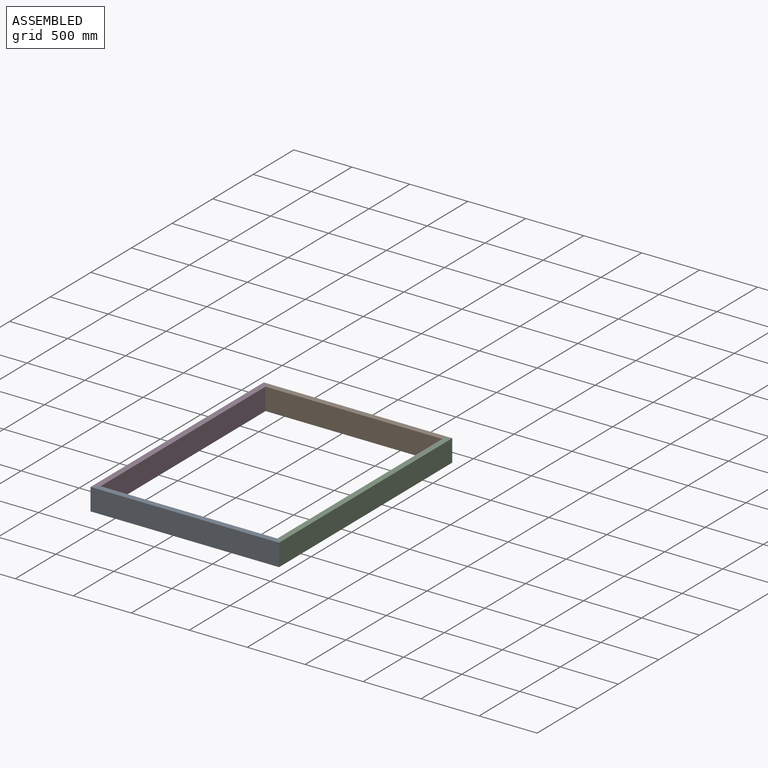
[diagram: assembled view]
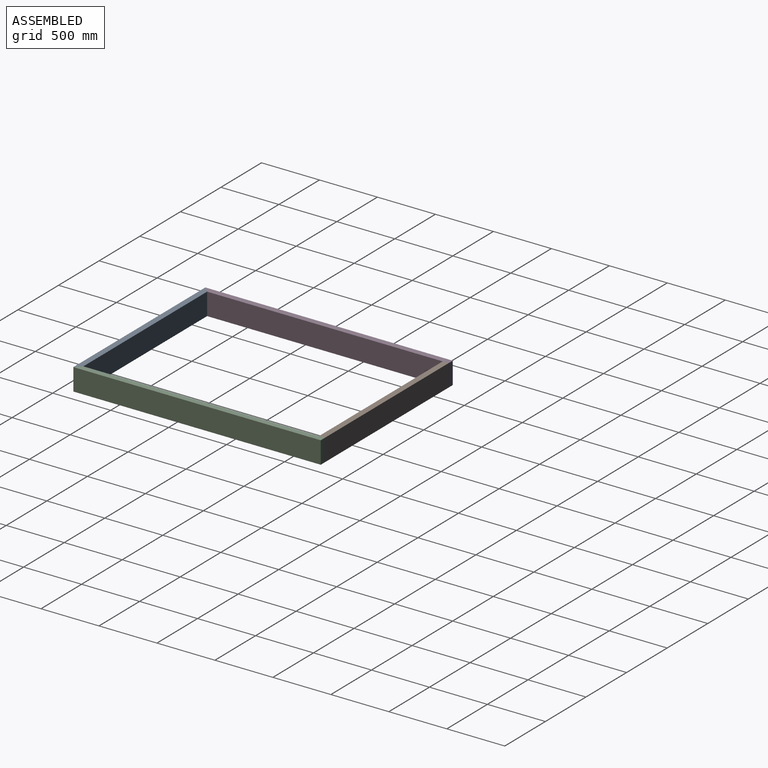
[diagram: assembled view, second angle]
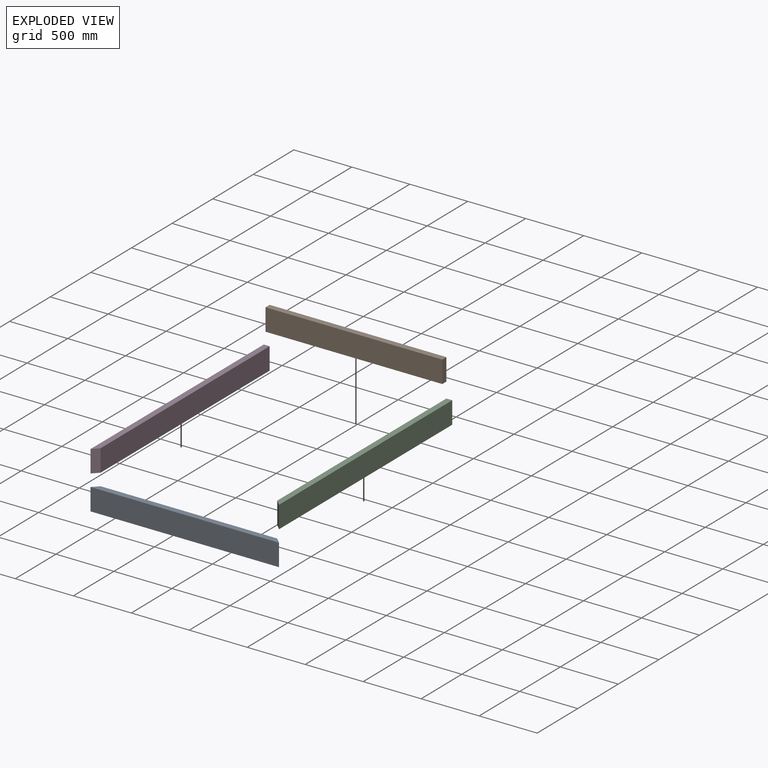
[diagram: exploded view]
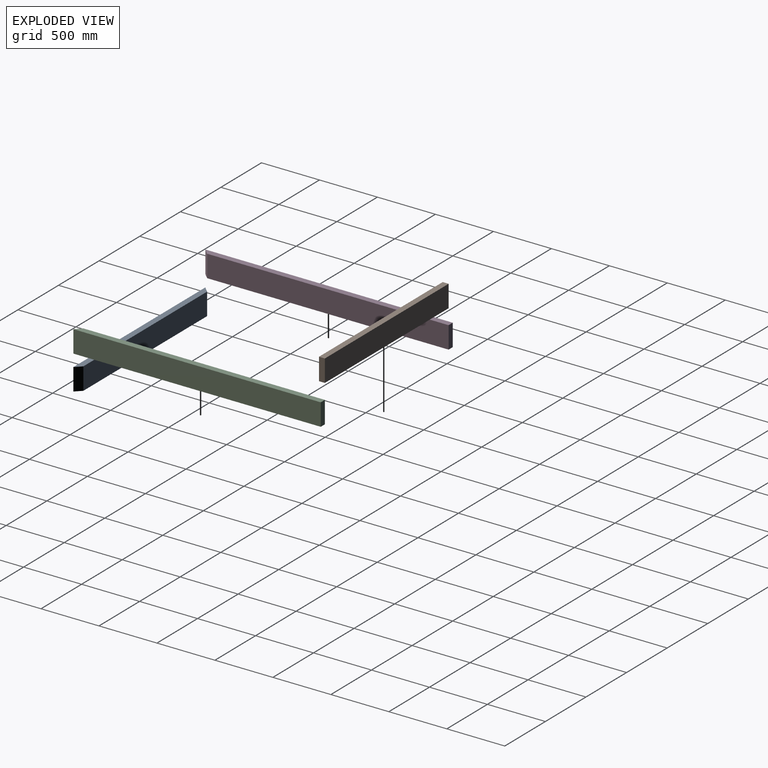
[diagram: exploded view, second angle]
ASSEMBLY  parts=4 mates=3
PART A: 6 faces, bbox 1625.6x50.8x190.5 mm
  f0: plane 190.5x50.8mm, normal (-0.71,0.71,0), area 13685.9mm2, adj f1,f3,f4,f5
  f1: plane 1625.6x190.5mm, normal (0,-1,0), area 309676.8mm2, adj f0,f2,f4,f5
  f2: plane 190.5x50.8mm, normal (0.71,0.71,0), area 13685.9mm2, adj f1,f3,f4,f5
  f3: plane 1524x190.5mm, normal (0,1,0), area 290322mm2, adj f0,f2,f4,f5
  f4: plane 1625.6x50.8mm, normal (0,0,1), area 79999.8mm2, adj f0,f1,f2,f3
  f5: plane 1625.6x50.8mm, normal (0,0,-1), area 79999.8mm2, adj f0,f1,f2,f3
PART B: 6 faces, bbox 1524x50.8x190.5 mm
  f0: plane 190.5x50.8mm, normal (-1,0,0), area 9677.4mm2, adj f1,f3,f4,f5
  f1: plane 1524x190.5mm, normal (0,-1,0), area 290322mm2, adj f0,f2,f4,f5
  f2: plane 190.5x50.8mm, normal (1,0,0), area 9677.4mm2, adj f1,f3,f4,f5
  f3: plane 1524x190.5mm, normal (0,1,0), area 290322mm2, adj f0,f2,f4,f5
  f4: plane 1524x50.8mm, normal (0,0,1), area 77419.2mm2, adj f0,f1,f2,f3
  f5: plane 1524x50.8mm, normal (0,0,-1), area 77419.2mm2, adj f0,f1,f2,f3
PART C: 6 faces, bbox 50.8x2133.6x190.5 mm
  f0: plane 190.5x50.8mm, normal (0,1,0), area 9677.4mm2, adj f1,f3,f4,f5
  f1: plane 2082.8x190.5mm, normal (-1,0,0), area 396773.4mm2, adj f0,f2,f4,f5
  f2: plane 190.5x50.8mm, normal (-0.71,-0.71,0), area 13685.9mm2, adj f1,f3,f4,f5
  f3: plane 2133.6x190.5mm, normal (1,0,0), area 406450.8mm2, adj f0,f2,f4,f5
  f4: plane 2133.6x50.8mm, normal (0,0,1), area 107096.6mm2, adj f0,f1,f2,f3
  f5: plane 2133.6x50.8mm, normal (0,0,-1), area 107096.6mm2, adj f0,f1,f2,f3
PART D: 6 faces, bbox 50.8x2133.6x190.5 mm
  f0: plane 2082.8x190.5mm, normal (1,0,0), area 396773.4mm2, adj f1,f3,f4,f5
  f1: plane 190.5x50.8mm, normal (0,1,0), area 9677.4mm2, adj f0,f2,f4,f5
  f2: plane 2133.6x190.5mm, normal (-1,0,0), area 406450.8mm2, adj f1,f3,f4,f5
  f3: plane 190.5x50.8mm, normal (0.71,-0.71,0), area 13685.9mm2, adj f0,f2,f4,f5
  f4: plane 2133.6x50.8mm, normal (0,0,1), area 107096.6mm2, adj f0,f1,f2,f3
  f5: plane 2133.6x50.8mm, normal (0,0,-1), area 107096.6mm2, adj f0,f1,f2,f3
PLACE A t=(840.26,-845.29,806.11)mm
PLACE B t=(891.06,1237.51,806.11)mm
PLACE C t=(2415.06,-845.29,806.11)mm
PLACE D t=(891.06,-794.49,806.11)mm
MATE planar D.f4 <-> A.f4  axis (0,0,1) through (865.56,234.16,996.61)mm
MATE planar B.f4 <-> C.f4  axis (0,0,1) through (1653.06,1262.91,996.61)mm
MATE planar A.f4 <-> C.f4  axis (0,0,1) through (1653.06,-820.16,996.61)mm
